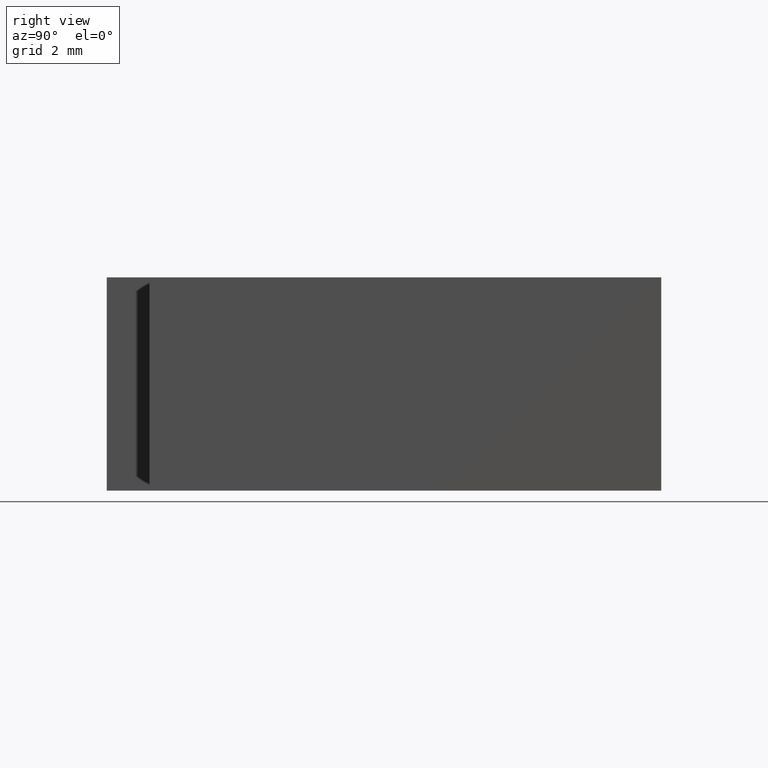
[diagram: clean part render]
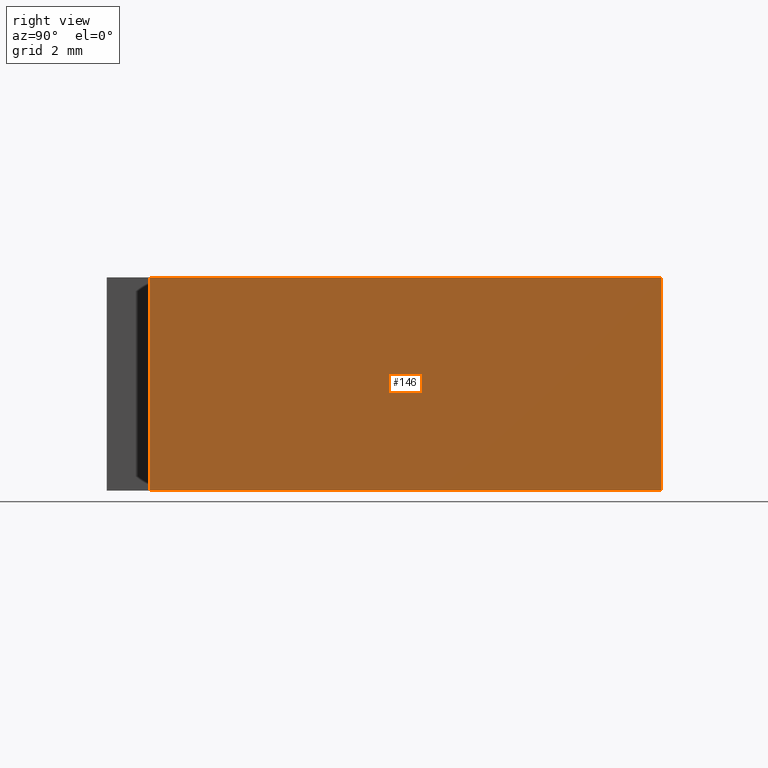
[diagram: same view with one face highlighted and labeled with its STEP entity id]
A machine part, right view. The second image highlights one B-rep face of the part: STEP entity #146.
In plain terms, the highlighted planar face has unit normal (1, -0, 0).
Its self-contained STEP definition (entity closure, byte-faithful):
#20=FACE_OUTER_BOUND('',#28,.T.);
#28=EDGE_LOOP('',(#119,#120,#121,#122));
#31=LINE('',#220,#49);
#45=LINE('',#247,#63);
#46=LINE('',#250,#64);
#47=LINE('',#251,#65);
#49=VECTOR('',#184,10.);
#63=VECTOR('',#206,10.);
#64=VECTOR('',#209,10.);
#65=VECTOR('',#210,10.);
#67=VERTEX_POINT('',#218);
#68=VERTEX_POINT('',#219);
#77=VERTEX_POINT('',#245);
#78=VERTEX_POINT('',#249);
#79=EDGE_CURVE('',#67,#68,#31,.T.);
#93=EDGE_CURVE('',#77,#68,#45,.T.);
#94=EDGE_CURVE('',#77,#78,#46,.T.);
#95=EDGE_CURVE('',#67,#78,#47,.T.);
#119=ORIENTED_EDGE('',*,*,#94,.T.);
#120=ORIENTED_EDGE('',*,*,#95,.F.);
#121=ORIENTED_EDGE('',*,*,#79,.T.);
#122=ORIENTED_EDGE('',*,*,#93,.F.);
#138=PLANE('',#177);
#146=ADVANCED_FACE('',(#20),#138,.T.);
#177=AXIS2_PLACEMENT_3D('',#248,#207,#208);
#184=DIRECTION('',(3.17128695075844E-16,1.,0.));
#206=DIRECTION('',(0.,0.,-1.));
#207=DIRECTION('center_axis',(1.,-3.17128695075844E-16,0.));
#208=DIRECTION('ref_axis',(0.,0.,-1.));
#209=DIRECTION('',(-3.17128695075844E-16,-1.,0.));
#210=DIRECTION('',(0.,0.,1.));
#218=CARTESIAN_POINT('',(-3.80554434091013E-15,0.999999999999996,-2.5));
#219=CARTESIAN_POINT('',(0.,13.,-2.5));
#220=CARTESIAN_POINT('',(0.,13.,-2.5));
#245=CARTESIAN_POINT('',(0.,13.,2.5));
#247=CARTESIAN_POINT('',(0.,13.,0.));
#248=CARTESIAN_POINT('Origin',(0.,13.,0.));
#249=CARTESIAN_POINT('',(-3.80554434091013E-15,0.999999999999996,2.5));
#250=CARTESIAN_POINT('',(0.,13.,2.5));
#251=CARTESIAN_POINT('',(-3.80554434091013E-15,0.999999999999996,0.));